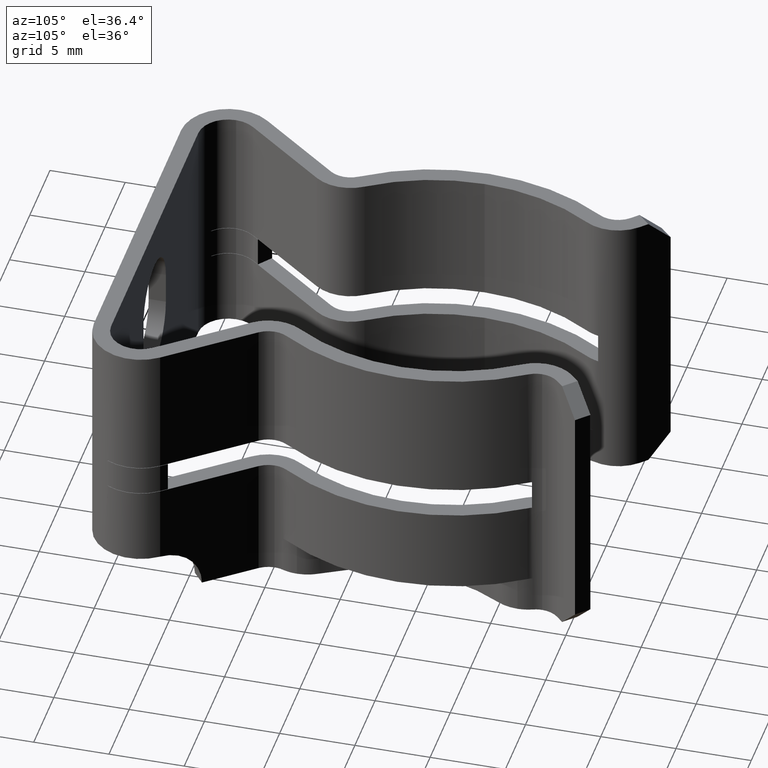
[diagram: clean part render]
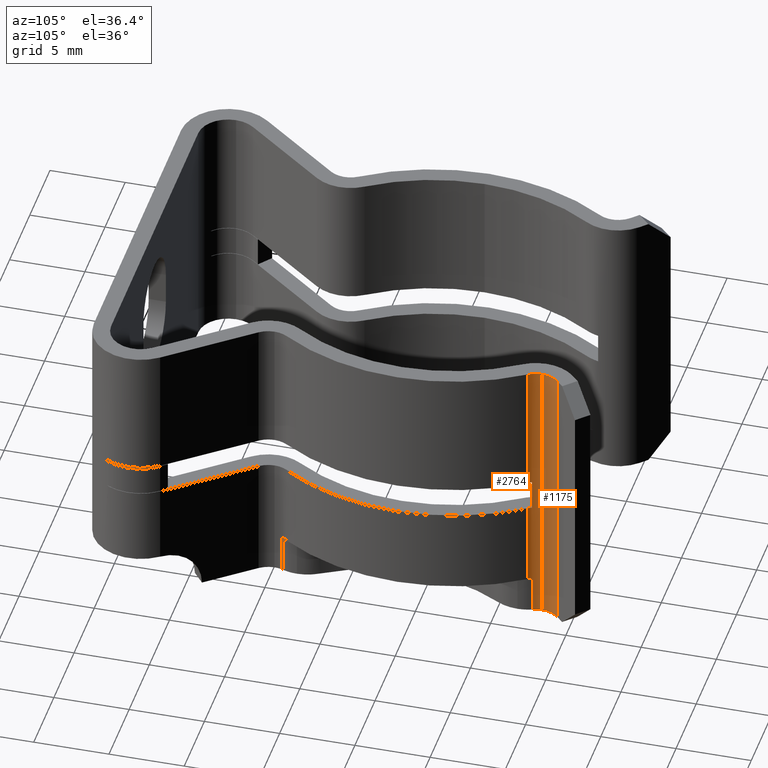
[diagram: same view with one multi-face feature highlighted, each face labeled with its STEP entity id]
A machine part, auxiliary view. The highlighted faces form ONE feature: a constant-radius fillet chain: 2 tangent blend faces with common blend radius 1.5748 mm. The faces share edges in the B-rep.
Their STEP definitions:
[1] entity #2764 (Cylinder):
#91 = VERTEX_POINT ( 'NONE', #1521 ) ;
#238 = LINE ( 'NONE', #1676, #4500 ) ;
#284 = EDGE_CURVE ( 'NONE', #853, #3953, #426, .T. ) ;
#327 = EDGE_CURVE ( 'NONE', #4208, #91, #3018, .T. ) ;
#426 = LINE ( 'NONE', #1803, #4122 ) ;
#443 = AXIS2_PLACEMENT_3D ( 'NONE', #1243, #3046, #3928 ) ;
#476 = CYLINDRICAL_SURFACE ( 'NONE', #2054, 0.06199999999999997900 ) ;
#526 = CIRCLE ( 'NONE', #2927, 0.06199999999999977800 ) ;
#552 = EDGE_CURVE ( 'NONE', #3173, #1444, #4233, .T. ) ;
#591 = FACE_OUTER_BOUND ( 'NONE', #2988, .T. ) ;
#751 = VERTEX_POINT ( 'NONE', #4467 ) ;
#801 = DIRECTION ( 'NONE',  ( 1.000000000000000000, 0.0000000000000000000, 0.0000000000000000000 ) ) ;
#853 = VERTEX_POINT ( 'NONE', #3266 ) ;
#949 = ORIENTED_EDGE ( 'NONE', *, *, #327, .T. ) ;
#999 = EDGE_CURVE ( 'NONE', #1264, #751, #238, .T. ) ;
#1209 = CARTESIAN_POINT ( 'NONE',  ( 0.3409999999999999700, 1.105000000000000000, 0.02000000000000000000 ) ) ;
#1238 = EDGE_CURVE ( 'NONE', #1391, #4208, #2570, .T. ) ;
#1243 = CARTESIAN_POINT ( 'NONE',  ( 0.4029999999999999700, 1.105000000000000000, -0.3199999999999998400 ) ) ;
#1264 = VERTEX_POINT ( 'NONE', #1209 ) ;
#1391 = VERTEX_POINT ( 'NONE', #3539 ) ;
#1444 = VERTEX_POINT ( 'NONE', #3040 ) ;
#1481 = EDGE_CURVE ( 'NONE', #3213, #1391, #4226, .T. ) ;
#1491 = CIRCLE ( 'NONE', #2700, 0.06199999999999990900 ) ;
#1521 = CARTESIAN_POINT ( 'NONE',  ( 0.3462637681899827800, 1.080000000000000100, -0.3999999999999998600 ) ) ;
#1555 = ORIENTED_EDGE ( 'NONE', *, *, #4029, .T. ) ;
#1676 = CARTESIAN_POINT ( 'NONE',  ( 0.3409999999999999700, 1.105000000000000000, 0.02000000000000000000 ) ) ;
#1752 = DIRECTION ( 'NONE',  ( -0.0000000000000000000, -0.0000000000000000000, -1.000000000000000000 ) ) ;
#1789 = ORIENTED_EDGE ( 'NONE', *, *, #1238, .T. ) ;
#1794 = ORIENTED_EDGE ( 'NONE', *, *, #552, .F. ) ;
#1803 = CARTESIAN_POINT ( 'NONE',  ( 0.3517089740080720500, 1.070168539325842700, 0.02000000000000000000 ) ) ;
#1815 = EDGE_CURVE ( 'NONE', #3213, #1264, #3076, .T. ) ;
#1860 = CARTESIAN_POINT ( 'NONE',  ( 0.3452559725942576100, 1.082425073666458200, -1.383371332676795100 ) ) ;
#1916 = DIRECTION ( 'NONE',  ( -0.0000000000000000000, -0.0000000000000000000, -1.000000000000000000 ) ) ;
#1948 = ORIENTED_EDGE ( 'NONE', *, *, #1481, .T. ) ;
#2003 = ORIENTED_EDGE ( 'NONE', *, *, #3975, .T. ) ;
#2054 = AXIS2_PLACEMENT_3D ( 'NONE', #2748, #2541, #2594 ) ;
#2318 = DIRECTION ( 'NONE',  ( -0.0000000000000000000, -0.0000000000000000000, -1.000000000000000000 ) ) ;
#2325 = CARTESIAN_POINT ( 'NONE',  ( 0.3517089740080720500, 1.070168539325842700, 0.02000000000000000000 ) ) ;
#2541 = DIRECTION ( 'NONE',  ( -0.0000000000000000000, -0.0000000000000000000, -1.000000000000000000 ) ) ;
#2570 = CIRCLE ( 'NONE', #443, 0.06199999999999990900 ) ;
#2594 = DIRECTION ( 'NONE',  ( -1.000000000000000000, 0.0000000000000000000, 0.0000000000000000000 ) ) ;
#2624 = DIRECTION ( 'NONE',  ( -0.0000000000000000000, -0.0000000000000000000, -1.000000000000000000 ) ) ;
#2677 = ORIENTED_EDGE ( 'NONE', *, *, #1815, .F. ) ;
#2700 = AXIS2_PLACEMENT_3D ( 'NONE', #3930, #3910, #3891 ) ;
#2748 = CARTESIAN_POINT ( 'NONE',  ( 0.4029999999999999700, 1.105000000000000000, 0.02000000000000000000 ) ) ;
#2764 = ADVANCED_FACE ( 'NONE', ( #591 ), #476, .F. ) ;
#2817 = DIRECTION ( 'NONE',  ( 1.000000000000000000, 6.609309662090962000E-015, 0.0000000000000000000 ) ) ;
#2820 = DIRECTION ( 'NONE',  ( -0.0000000000000000000, -0.0000000000000000000, -1.000000000000000000 ) ) ;
#2824 = CARTESIAN_POINT ( 'NONE',  ( 0.4029999999999999700, 1.105000000000000000, -0.7199999999999999700 ) ) ;
#2835 = AXIS2_PLACEMENT_3D ( 'NONE', #4373, #1916, #801 ) ;
#2927 = AXIS2_PLACEMENT_3D ( 'NONE', #3674, #3664, #3648 ) ;
#2963 = VECTOR ( 'NONE', #4424, 39.37007874015748100 ) ;
#2977 = CARTESIAN_POINT ( 'NONE',  ( 0.3462637681899828300, 1.080000000000000100, -0.3199999999999998400 ) ) ;
#2988 = EDGE_LOOP ( 'NONE', ( #3708, #2677, #1948, #1789, #949, #2003, #3594, #1555, #1794, #3152 ) ) ;
#3018 = LINE ( 'NONE', #3247, #3760 ) ;
#3040 = CARTESIAN_POINT ( 'NONE',  ( 0.3452559725942576100, 1.082425073666458200, -0.6220000000000000000 ) ) ;
#3046 = DIRECTION ( 'NONE',  ( -0.0000000000000000000, 1.288607544181256200E-016, -1.000000000000000000 ) ) ;
#3076 = CIRCLE ( 'NONE', #2835, 0.06199999999999997900 ) ;
#3152 = ORIENTED_EDGE ( 'NONE', *, *, #3377, .T. ) ;
#3173 = VERTEX_POINT ( 'NONE', #4577 ) ;
#3213 = VERTEX_POINT ( 'NONE', #4559 ) ;
#3247 = CARTESIAN_POINT ( 'NONE',  ( 0.3462637681899827800, 1.080000000000000100, 0.02000000000000000000 ) ) ;
#3266 = CARTESIAN_POINT ( 'NONE',  ( 0.3517089740080720500, 1.070168539325842700, -0.3999999999999998600 ) ) ;
#3377 = EDGE_CURVE ( 'NONE', #3173, #751, #3954, .T. ) ;
#3539 = CARTESIAN_POINT ( 'NONE',  ( 0.3517089740080720500, 1.070168539325842700, -0.3199999999999998400 ) ) ;
#3594 = ORIENTED_EDGE ( 'NONE', *, *, #284, .T. ) ;
#3648 = DIRECTION ( 'NONE',  ( 1.000000000000000000, 0.0000000000000000000, 0.0000000000000000000 ) ) ;
#3664 = DIRECTION ( 'NONE',  ( -0.0000000000000000000, -0.0000000000000000000, -1.000000000000000000 ) ) ;
#3674 = CARTESIAN_POINT ( 'NONE',  ( 0.4029999999999999700, 1.105000000000000000, -0.6220000000000000000 ) ) ;
#3708 = ORIENTED_EDGE ( 'NONE', *, *, #999, .F. ) ;
#3760 = VECTOR ( 'NONE', #2624, 39.37007874015748100 ) ;
#3890 = AXIS2_PLACEMENT_3D ( 'NONE', #2824, #2820, #2817 ) ;
#3891 = DIRECTION ( 'NONE',  ( 2.203103220696989800E-015, 1.000000000000000000, 0.0000000000000000000 ) ) ;
#3910 = DIRECTION ( 'NONE',  ( -0.0000000000000000000, -1.288607544181256200E-016, 1.000000000000000000 ) ) ;
#3928 = DIRECTION ( 'NONE',  ( -4.406206441393979700E-015, -1.000000000000000000, 0.0000000000000000000 ) ) ;
#3930 = CARTESIAN_POINT ( 'NONE',  ( 0.4029999999999999700, 1.105000000000000000, -0.3999999999999998600 ) ) ;
#3953 = VERTEX_POINT ( 'NONE', #4130 ) ;
#3954 = CIRCLE ( 'NONE', #3890, 0.06199999999999997900 ) ;
#3975 = EDGE_CURVE ( 'NONE', #91, #853, #1491, .T. ) ;
#4029 = EDGE_CURVE ( 'NONE', #3953, #1444, #526, .T. ) ;
#4059 = VECTOR ( 'NONE', #2318, 39.37007874015748100 ) ;
#4122 = VECTOR ( 'NONE', #4297, 39.37007874015748100 ) ;
#4130 = CARTESIAN_POINT ( 'NONE',  ( 0.3517089740080721600, 1.070168539325842700, -0.6220000000000000000 ) ) ;
#4208 = VERTEX_POINT ( 'NONE', #2977 ) ;
#4226 = LINE ( 'NONE', #2325, #4059 ) ;
#4233 = LINE ( 'NONE', #1860, #2963 ) ;
#4297 = DIRECTION ( 'NONE',  ( -0.0000000000000000000, -0.0000000000000000000, -1.000000000000000000 ) ) ;
#4373 = CARTESIAN_POINT ( 'NONE',  ( 0.4029999999999999700, 1.105000000000000000, 0.02000000000000000000 ) ) ;
#4424 = DIRECTION ( 'NONE',  ( -0.0000000000000000000, -0.0000000000000000000, 1.000000000000000000 ) ) ;
#4467 = CARTESIAN_POINT ( 'NONE',  ( 0.3409999999999999700, 1.105000000000000000, -0.7199999999999999700 ) ) ;
#4500 = VECTOR ( 'NONE', #1752, 39.37007874015748100 ) ;
#4559 = CARTESIAN_POINT ( 'NONE',  ( 0.3517089740080720500, 1.070168539325842700, 0.02000000000000000000 ) ) ;
#4577 = CARTESIAN_POINT ( 'NONE',  ( 0.3452559725942575000, 1.082425073666458200, -0.7199999999999999700 ) ) ;
[2] entity #1175 (Cylinder):
#19 = EDGE_LOOP ( 'NONE', ( #4095, #4290, #2163, #4193 ) ) ;
#209 = DIRECTION ( 'NONE',  ( -0.0000000000000000000, -0.0000000000000000000, -1.000000000000000000 ) ) ;
#220 = CARTESIAN_POINT ( 'NONE',  ( 0.4029999999999999700, 1.105000000000000000, 0.02000000000000000000 ) ) ;
#238 = LINE ( 'NONE', #1676, #4500 ) ;
#258 = DIRECTION ( 'NONE',  ( -1.000000000000000000, 0.0000000000000000000, 0.0000000000000000000 ) ) ;
#381 = DIRECTION ( 'NONE',  ( 1.000000000000000000, 0.0000000000000000000, 0.0000000000000000000 ) ) ;
#394 = DIRECTION ( 'NONE',  ( -0.0000000000000000000, -0.0000000000000000000, -1.000000000000000000 ) ) ;
#408 = CARTESIAN_POINT ( 'NONE',  ( 0.4029999999999999700, 1.105000000000000000, -0.7199999999999999700 ) ) ;
#508 = DIRECTION ( 'NONE',  ( 1.000000000000000000, 0.0000000000000000000, 0.0000000000000000000 ) ) ;
#543 = DIRECTION ( 'NONE',  ( -0.0000000000000000000, -0.0000000000000000000, -1.000000000000000000 ) ) ;
#557 = CARTESIAN_POINT ( 'NONE',  ( 0.4029999999999999700, 1.105000000000000000, 0.02000000000000000000 ) ) ;
#681 = AXIS2_PLACEMENT_3D ( 'NONE', #557, #543, #508 ) ;
#751 = VERTEX_POINT ( 'NONE', #4467 ) ;
#919 = VECTOR ( 'NONE', #2642, 39.37007874015748100 ) ;
#999 = EDGE_CURVE ( 'NONE', #1264, #751, #238, .T. ) ;
#1175 = ADVANCED_FACE ( 'NONE', ( #2688 ), #2577, .F. ) ;
#1209 = CARTESIAN_POINT ( 'NONE',  ( 0.3409999999999999700, 1.105000000000000000, 0.02000000000000000000 ) ) ;
#1264 = VERTEX_POINT ( 'NONE', #1209 ) ;
#1311 = CIRCLE ( 'NONE', #681, 0.06199999999999997900 ) ;
#1676 = CARTESIAN_POINT ( 'NONE',  ( 0.3409999999999999700, 1.105000000000000000, 0.02000000000000000000 ) ) ;
#1752 = DIRECTION ( 'NONE',  ( -0.0000000000000000000, -0.0000000000000000000, -1.000000000000000000 ) ) ;
#1885 = LINE ( 'NONE', #3003, #919 ) ;
#2163 = ORIENTED_EDGE ( 'NONE', *, *, #3658, .T. ) ;
#2258 = CARTESIAN_POINT ( 'NONE',  ( 0.3591593795664340700, 1.148840620433565900, -0.7199999999999999700 ) ) ;
#2366 = AXIS2_PLACEMENT_3D ( 'NONE', #408, #394, #381 ) ;
#2577 = CYLINDRICAL_SURFACE ( 'NONE', #3916, 0.06199999999999997900 ) ;
#2642 = DIRECTION ( 'NONE',  ( -0.0000000000000000000, -0.0000000000000000000, -1.000000000000000000 ) ) ;
#2688 = FACE_OUTER_BOUND ( 'NONE', #19, .T. ) ;
#2954 = CIRCLE ( 'NONE', #2366, 0.06199999999999997900 ) ;
#3003 = CARTESIAN_POINT ( 'NONE',  ( 0.3591593795664340700, 1.148840620433565900, 0.02000000000000000000 ) ) ;
#3264 = VERTEX_POINT ( 'NONE', #4108 ) ;
#3658 = EDGE_CURVE ( 'NONE', #751, #4333, #2954, .T. ) ;
#3916 = AXIS2_PLACEMENT_3D ( 'NONE', #220, #209, #258 ) ;
#4095 = ORIENTED_EDGE ( 'NONE', *, *, #4593, .F. ) ;
#4108 = CARTESIAN_POINT ( 'NONE',  ( 0.3591593795664340700, 1.148840620433565900, 0.02000000000000000000 ) ) ;
#4193 = ORIENTED_EDGE ( 'NONE', *, *, #4252, .F. ) ;
#4252 = EDGE_CURVE ( 'NONE', #3264, #4333, #1885, .T. ) ;
#4290 = ORIENTED_EDGE ( 'NONE', *, *, #999, .T. ) ;
#4333 = VERTEX_POINT ( 'NONE', #2258 ) ;
#4467 = CARTESIAN_POINT ( 'NONE',  ( 0.3409999999999999700, 1.105000000000000000, -0.7199999999999999700 ) ) ;
#4500 = VECTOR ( 'NONE', #1752, 39.37007874015748100 ) ;
#4593 = EDGE_CURVE ( 'NONE', #1264, #3264, #1311, .T. ) ;